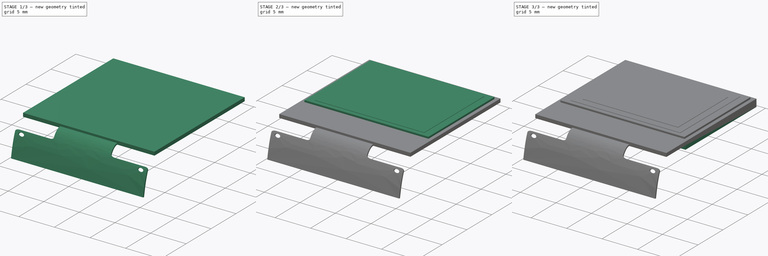
[diagram: build sequence overview — one tinted view per stage of 3, left to right]
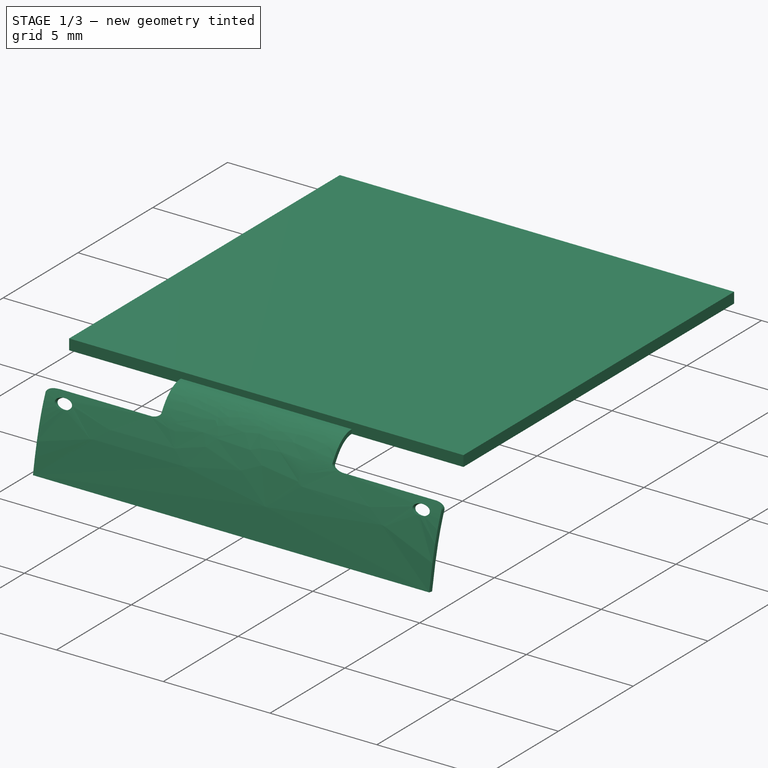
[diagram: stage 1 of 3 — iso view after this stage's code; geometry added in this stage tinted green]
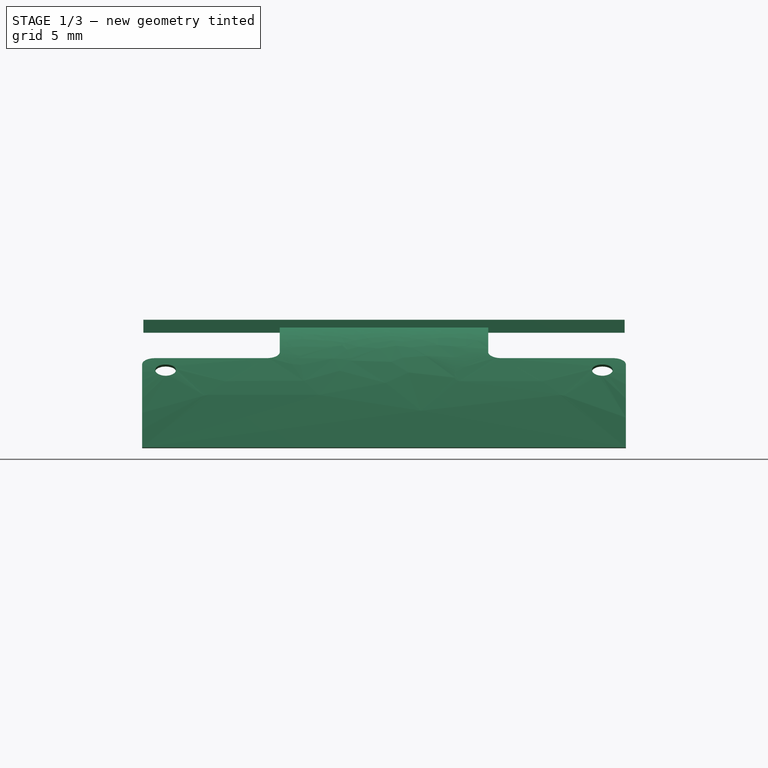
[diagram: stage 1 of 3 — front view after this stage's code; geometry added in this stage tinted green]
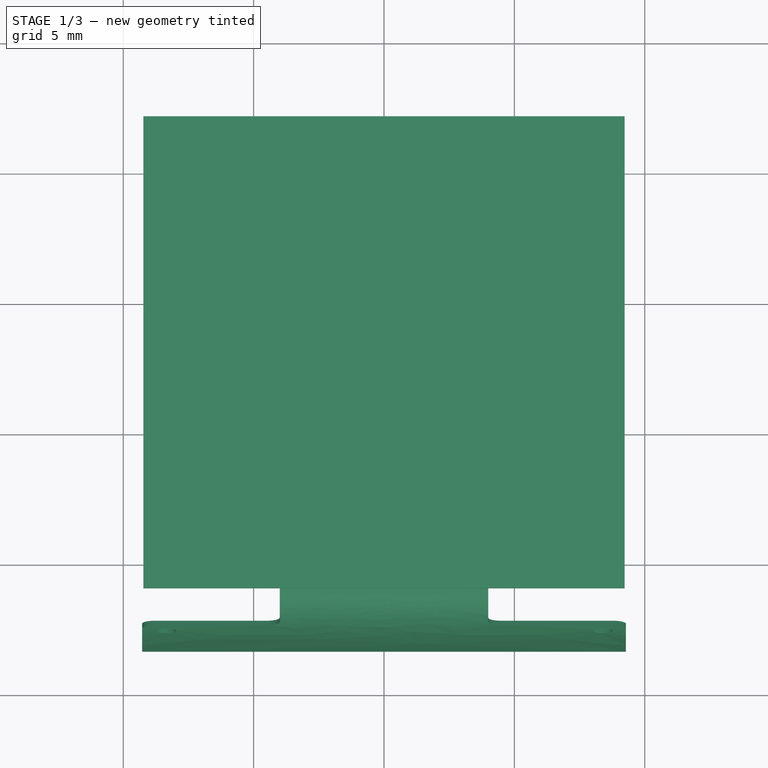
[diagram: stage 1 of 3 — top view after this stage's code; geometry added in this stage tinted green]
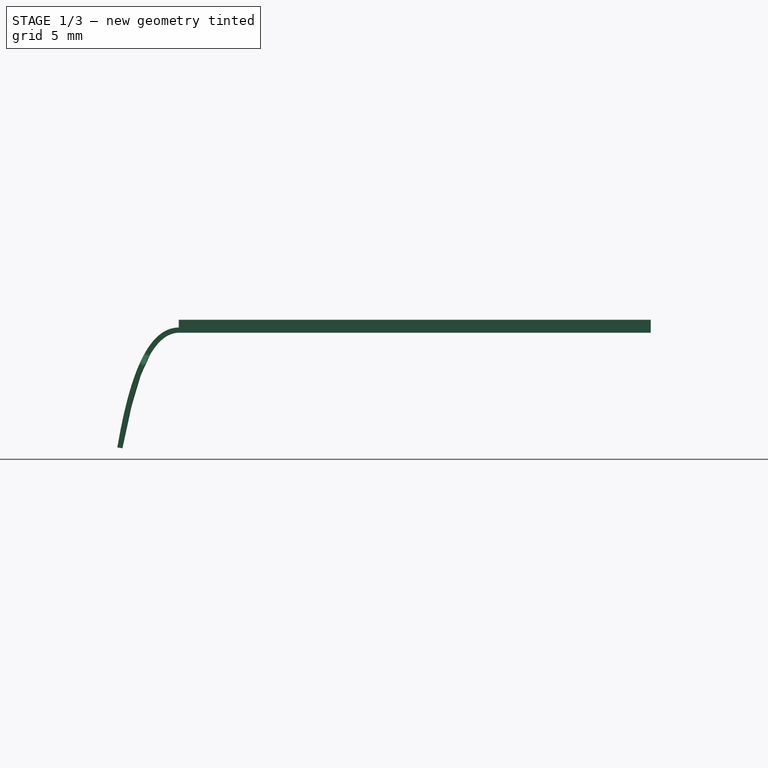
[diagram: stage 1 of 3 — right view after this stage's code; geometry added in this stage tinted green]
FCSTD DOCUMENT  (FreeCAD 0.19R24291 (Git))
Label: EA_W064048
License: Creative Commons Attribution-NonCommercial-ShareAlike
LicenseURL: http://creativecommons.org/licenses/by-nc-sa/4.0/
objects: Sketcher::SketchObject×7, PartDesign::Pad×5, PartDesign::Body×1, Part::Extrusion×1, Part::FeaturePython×1, App::Part×1
note: 20 computed .brp shape members not serialized (recipe doc carries the construction recipe); baked Part::Feature solids carry a one-line shape summary decoded from their .brp

FEATURE [Sketcher::SketchObject] Sketch
  FullyConstrained = true
  MapMode = 5
  Support = -> [XY_Plane]
  sketch-geometry (4):
    g0: LineSegment StartX=-9.23 StartY=7.13 StartZ=0 EndX=9.23 EndY=7.13 EndZ=0
    g1: LineSegment StartX=9.23 StartY=7.13 StartZ=0 EndX=9.23 EndY=-10.97 EndZ=0
    g2: LineSegment StartX=9.23 StartY=-10.97 StartZ=0 EndX=-9.23 EndY=-10.97 EndZ=0
    g3: LineSegment StartX=-9.23 StartY=-10.97 StartZ=0 EndX=-9.23 EndY=7.13 EndZ=0
  constraints (11):
    c: Coincident(g0,g1)
    c: Coincident(g1,g2)
    c: Coincident(g2,g3)
    c: Coincident(g3,g0)
    c: Horizontal(g2)
    c: Vertical(g1)
    c: Vertical(g3)
    c: Distance(g0) = 18.46
    c: Distance(g1) = 18.1
    c: Symmetric(g0,g0,g-2)
    c: Distance(g-1,g0) = 7.13
FEATURE [PartDesign::Pad] Pad
  Direction = (1,1,1)
  Length = 0.5
  Length2 = 100
  Profile = -> Sketch
  Refine = true
  Type = 0
FEATURE [PartDesign::Body] Body  label="Display"
  Group = -> [Sketch,Pad,Sketch001,Pad001,Sketch002,Pad002,Sketch003,Pad003,Sketch004,Pad004]
  Origin = -> Origin
  Tip = -> Pad004
FEATURE [Sketcher::SketchObject] Sketch005
  FullyConstrained = true
  MapMode = 5
  Placement = pos=(0,0,0) rot=(0.57735,0.57735,0.57735;2.0944rad)
  Support = -> [YZ_Plane003]
  sketch-geometry (6):
    g0: Circle CenterX=-10.97 CenterY=0 CenterZ=0 NormalX=0 NormalY=0 NormalZ=1 AngleXU=0 Radius=1
    g1: Circle CenterX=-13.97 CenterY=0 CenterZ=0 NormalX=0 NormalY=0 NormalZ=1 AngleXU=0 Radius=1
    g2: Circle CenterX=-13.97 CenterY=-20 CenterZ=0 NormalX=0 NormalY=0 NormalZ=1 AngleXU=0 Radius=1
    g3: BSplineCurve PolesCount=3 KnotsCount=2 Degree=2 IsPeriodic=0
    g4: GeomPoint X=-10.97 Y=0 Z=0
    g5: GeomPoint X=-13.97 Y=-20 Z=0
  constraints (14):
    c: PointOnObject(g3,g-1)
    c: Weight(g0) = 1
    c: Equal(g0,g1)
    c: Equal(g0,g2)
    c: InternalAlignment(g0,g3)
    c: InternalAlignment(g1,g3)
    c: InternalAlignment(g2,g3)
    c: InternalAlignment(g4,g3)
    c: InternalAlignment(g5,g3)
    c: Vertical(g3,g1)
    c: DistanceX(g-2,g3) = -10.97
    c: DistanceY(g-1,g3) = -20
    c: DistanceX(g3,g3) = 3
    c: PointOnObject(g1,g-1)
FEATURE [Part::Extrusion] Extrude
  Base = -> Sketch005
  Dir = (1,-1e-16,1e-16)
  DirMode = 2
  FaceMakerClass = Part::FaceMakerBullseye
  LengthFwd = 20
  LengthRev = 0
  Solid = false
  Symmetric = true
FEATURE [Sketcher::SketchObject] Mapped_Sketch
  FullyConstrained = true
  Support = -> [Extrude]
  sketch-geometry (18):
    g0: LineSegment StartX=-10 StartY=0 StartZ=0 EndX=10 EndY=0 EndZ=0
    g1: LineSegment StartX=10 StartY=0 StartZ=0 EndX=10 EndY=-20.821 EndZ=0
    g2: LineSegment StartX=10 StartY=-20.821 StartZ=0 EndX=-10 EndY=-20.821 EndZ=0
    g3: LineSegment StartX=-10 StartY=-20.821 StartZ=0 EndX=-10 EndY=0 EndZ=0
    g4: LineSegment StartX=4 StartY=0 StartZ=0 EndX=4 EndY=-4.3 EndZ=0
    g5: ArcOfCircle CenterX=4.5 CenterY=-4.3 CenterZ=0 NormalX=0 NormalY=0 NormalZ=1 AngleXU=0 Radius=0.5 StartAngle=3.14159 EndAngle=4.71239
    g6: LineSegment StartX=4.5 StartY=-4.8 StartZ=0 EndX=8.775 EndY=-4.8 EndZ=0
    g7: ArcOfCircle CenterX=8.775 CenterY=-5.3 CenterZ=0 NormalX=0 NormalY=0 NormalZ=1 AngleXU=0 Radius=0.5 StartAngle=-9e-16 EndAngle=1.5708
    g8: LineSegment StartX=9.275 StartY=-5.3 StartZ=0 EndX=9.275 EndY=-9.8 EndZ=0
    g9: LineSegment StartX=-4 StartY=0 StartZ=0 EndX=-4 EndY=-4.3 EndZ=0
    g10: ArcOfCircle CenterX=-4.5 CenterY=-4.3 CenterZ=0 NormalX=0 NormalY=0 NormalZ=1 AngleXU=0 Radius=0.5 StartAngle=4.71239 EndAngle=6.28319
    g11: LineSegment StartX=-4.5 StartY=-4.8 StartZ=0 EndX=-8.775 EndY=-4.8 EndZ=0
    g12: ArcOfCircle CenterX=-8.775 CenterY=-5.3 CenterZ=0 NormalX=0 NormalY=0 NormalZ=1 AngleXU=0 Radius=0.5 StartAngle=1.5708 EndAngle=3.14159
    g13: LineSegment StartX=-9.275 StartY=-5.3 StartZ=0 EndX=-9.275 EndY=-9.8 EndZ=0
    g14: LineSegment StartX=-4 StartY=0 StartZ=0 EndX=4 EndY=0 EndZ=0
    g15: LineSegment StartX=-9.275 StartY=-9.8 StartZ=0 EndX=9.275 EndY=-9.8 EndZ=0
    g16: Circle CenterX=-8.375 CenterY=-5.7 CenterZ=0 NormalX=0 NormalY=0 NormalZ=1 AngleXU=0 Radius=0.4
    g17: Circle CenterX=8.375 CenterY=-5.7 CenterZ=0 NormalX=0 NormalY=0 NormalZ=1 AngleXU=0 Radius=0.4
  constraints (45):
    c: Coincident(g0,g1)
    c: Coincident(g1,g2)
    c: Coincident(g2,g3)
    c: Coincident(g3,g0)
    c: Vertical(g1)
    c: Vertical(g3)
    c: PointOnObject(g0,g-1)
    c: Distance(g0) = 20
    c: Distance(g1) = 20.821
    c: PointOnObject(g4,g0)
    c: Vertical(g4)
    c: Tangent(g4,g5) = -1.5708
    c: Tangent(g5,g6) = -1.5708
    c: Tangent(g6,g7) = 1.5708
    c: Tangent(g7,g8) = 1.5708
    c: Tangent(g9,g10) = 1.5708
    c: Tangent(g10,g11) = 1.5708
    c: Tangent(g11,g12) = -1.5708
    c: Tangent(g12,g13) = -1.5708
    c: Coincident(g14,g9)
    c: Coincident(g14,g4)
    c: Coincident(g15,g13)
    c: Coincident(g15,g8)
    c: Distance(g15) = 18.55
    c: Symmetric(g9,g4,g-2)
    c: Symmetric(g13,g8,g-2)
    c: Symmetric(g0,g0,g-2)
    c: Vertical(g13)
    c: Vertical(g8)
    c: Horizontal(g11,g10)
    c: Horizontal(g10,g5)
    c: Horizontal(g5,g6)
    c: Distance(g14) = 8
    c: Symmetric(g9,g4,g-2)
    c: Radius(g10) = 0.5
    c: Radius(g12) = 0.5
    c: Distance(g9,g15) = 9.8
    c: Distance(g5,g15) = 5
    c: Radius(g7) = 0.5
    c: Horizontal(g2)
    c: Radius(g16) = 0.4
    c: Distance(g16,g15) = 4.1
    c: DistanceX(g-2,g16) = -8.375
    c: Radius(g17) = 0.4
    c: Symmetric(g17,g16,g-2)
FEATURE [Part::FeaturePython] Sketch_On_Surface  # WARN: FeaturePython — macro-defined, semantics opaque (R4)
  ConstructionBounds = true
  FillExtrusion = true
  FillFaces = true
  ReverseU = false
  ReverseV = true
  Sketch = -> Mapped_Sketch
  SwapUV = true
  Thickness = -0.2
FEATURE [App::Part] Part001  label="Flatflex Connector"
  Group = -> [Sketch005,Extrude,Mapped_Sketch,Sketch_On_Surface]
  Origin = -> Origin003
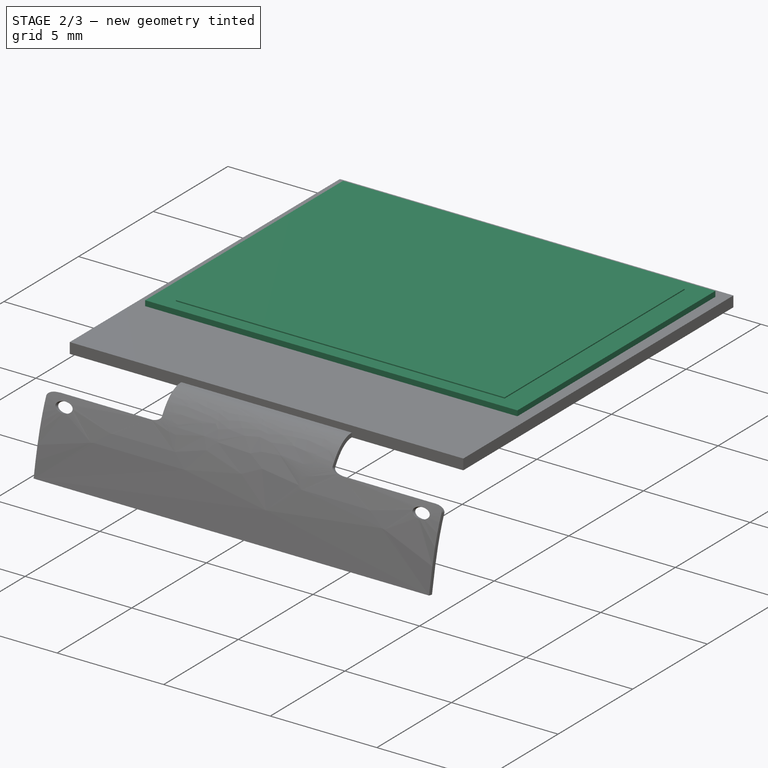
[diagram: stage 2 of 3 — iso view after this stage's code; geometry added in this stage tinted green]
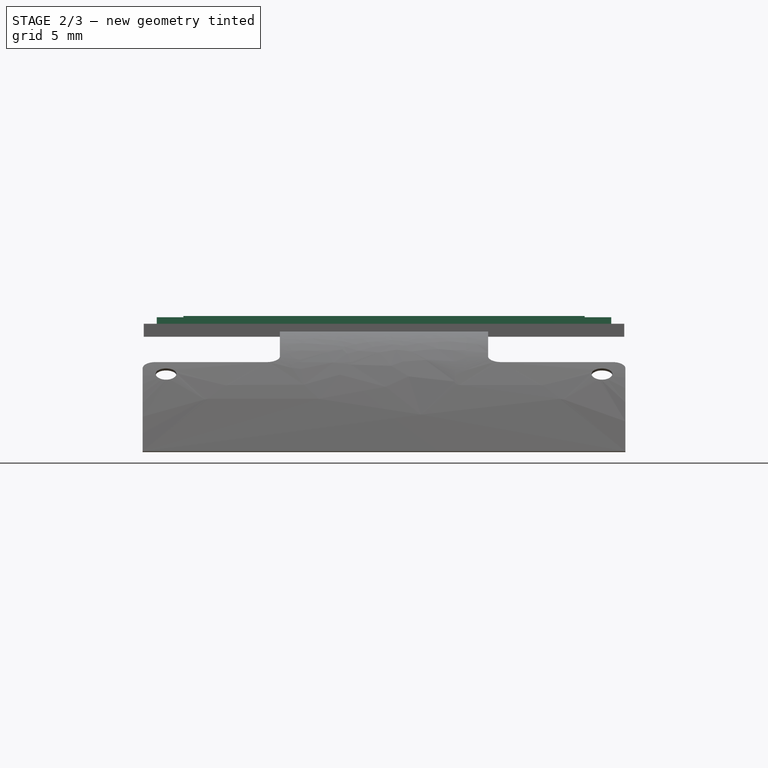
[diagram: stage 2 of 3 — front view after this stage's code; geometry added in this stage tinted green]
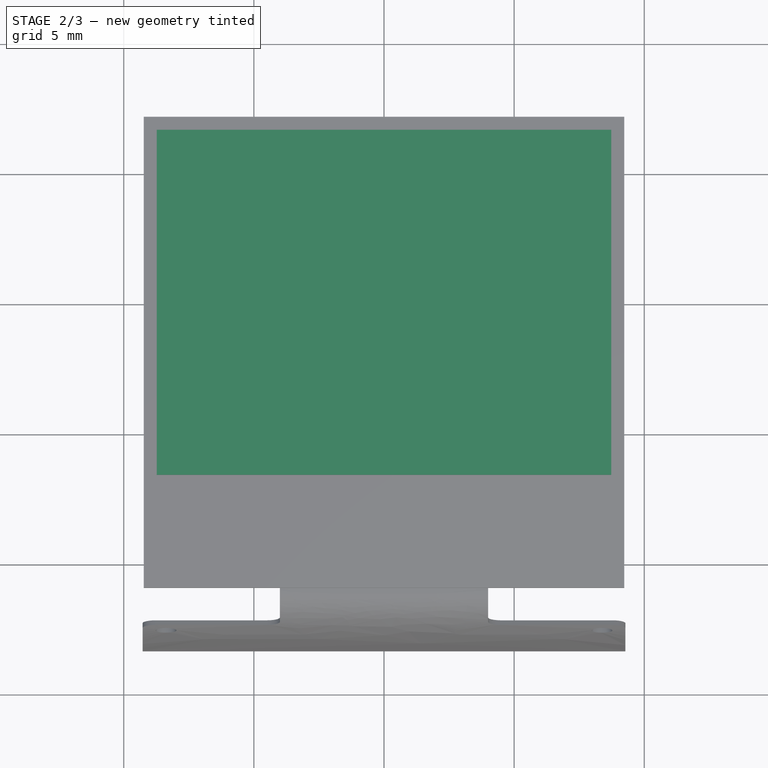
[diagram: stage 2 of 3 — top view after this stage's code; geometry added in this stage tinted green]
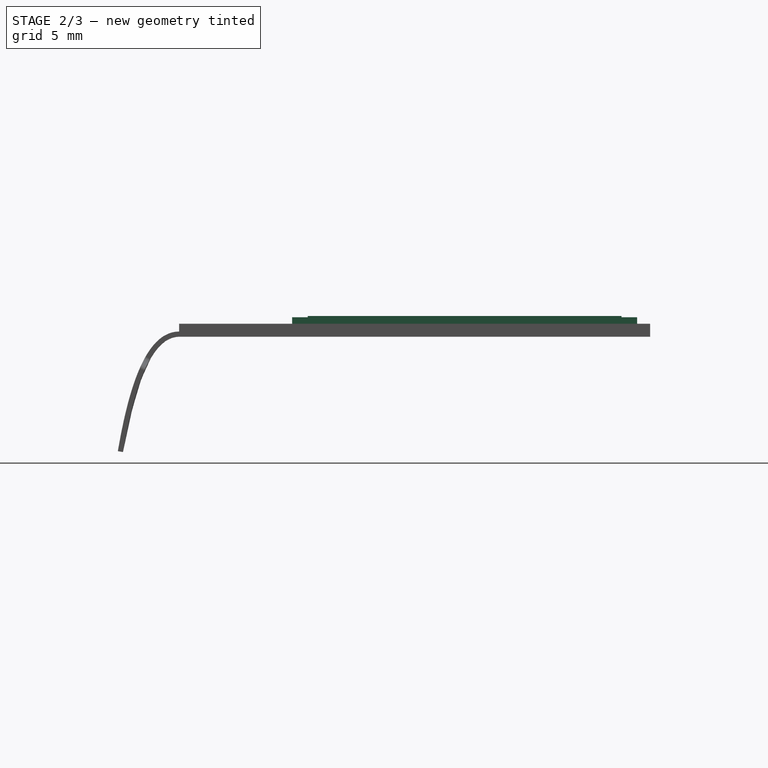
[diagram: stage 2 of 3 — right view after this stage's code; geometry added in this stage tinted green]
FEATURE [Sketcher::SketchObject] Sketch001
  FullyConstrained = true
  MapMode = 5
  Placement = pos=(0,0,0.5) rot=(0,0,1;0rad)
  Support = -> [Pad]
  sketch-geometry (4):
    g0: LineSegment StartX=-8.73 StartY=6.63 StartZ=0 EndX=8.73 EndY=6.63 EndZ=0
    g1: LineSegment StartX=8.73 StartY=6.63 StartZ=0 EndX=8.73 EndY=-6.63 EndZ=0
    g2: LineSegment StartX=8.73 StartY=-6.63 StartZ=0 EndX=-8.73 EndY=-6.63 EndZ=0
    g3: LineSegment StartX=-8.73 StartY=-6.63 StartZ=0 EndX=-8.73 EndY=6.63 EndZ=0
  constraints (11):
    c: Coincident(g0,g1)
    c: Coincident(g1,g2)
    c: Coincident(g2,g3)
    c: Coincident(g3,g0)
    c: Horizontal(g2)
    c: Vertical(g1)
    c: Vertical(g3)
    c: Distance(g0) = 17.46
    c: Distance(g1) = 13.26
    c: Symmetric(g0,g0,g-2)
    c: Distance(g-1,g0) = 6.63
FEATURE [PartDesign::Pad] Pad001
  BaseFeature = -> Pad
  Direction = (1,1,1)
  Length = 0.25
  Length2 = 100
  Profile = -> Sketch001
  Refine = true
  Type = 0
FEATURE [Sketcher::SketchObject] Sketch002
  FullyConstrained = true
  MapMode = 5
  Placement = pos=(0,0,0.75) rot=(0,0,1;0rad)
  Support = -> [Pad001]
  sketch-geometry (4):
    g0: LineSegment StartX=-7.71 StartY=6.03 StartZ=0 EndX=7.71 EndY=6.03 EndZ=0
    g1: LineSegment StartX=7.71 StartY=6.03 StartZ=0 EndX=7.71 EndY=-6.03 EndZ=0
    g2: LineSegment StartX=7.71 StartY=-6.03 StartZ=0 EndX=-7.71 EndY=-6.03 EndZ=0
    g3: LineSegment StartX=-7.71 StartY=-6.03 StartZ=0 EndX=-7.71 EndY=6.03 EndZ=0
  constraints (11):
    c: Coincident(g0,g1)
    c: Coincident(g1,g2)
    c: Coincident(g2,g3)
    c: Coincident(g3,g0)
    c: Horizontal(g2)
    c: Vertical(g1)
    c: Vertical(g3)
    c: Symmetric(g0,g0,g-2)
    c: Distance(g0) = 15.42
    c: Distance(g3) = 12.06
    c: Distance(g-1,g0) = 6.03
FEATURE [PartDesign::Pad] Pad002
  BaseFeature = -> Pad001
  Direction = (1,1,1)
  Length = 0.05
  Length2 = 100
  Profile = -> Sketch002
  Refine = true
  Type = 0
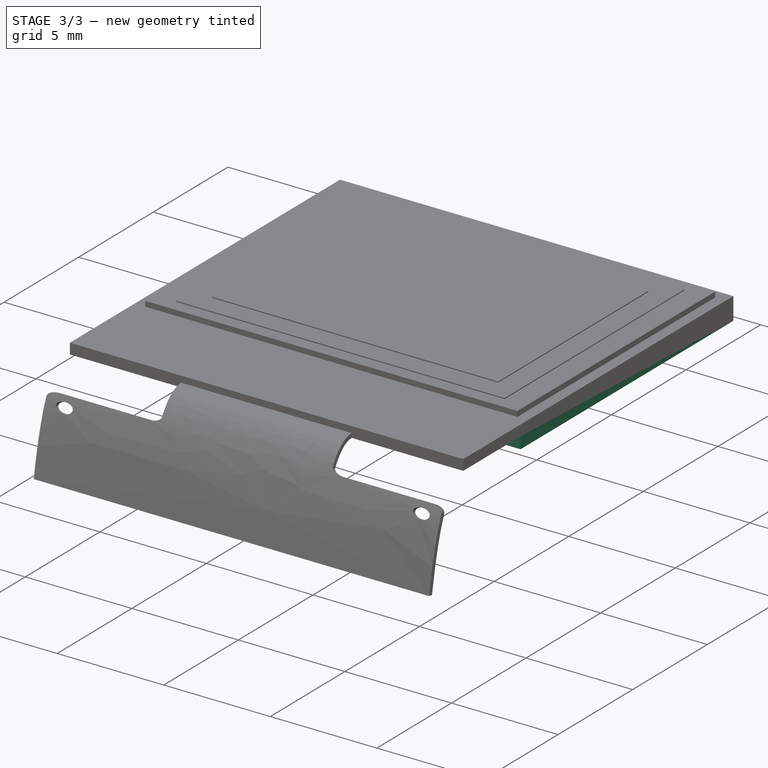
[diagram: stage 3 of 3 — iso view after this stage's code; geometry added in this stage tinted green]
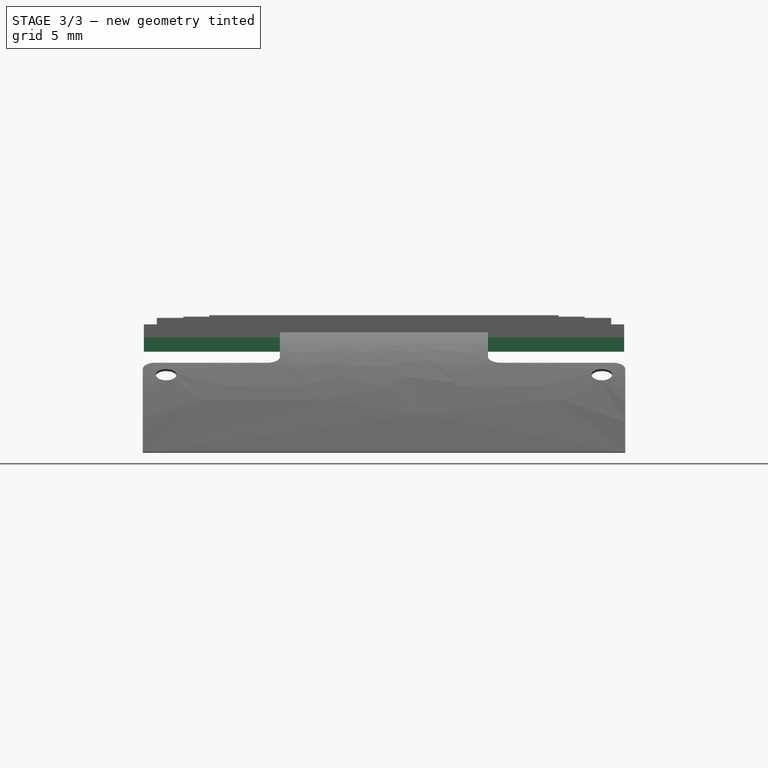
[diagram: stage 3 of 3 — front view after this stage's code; geometry added in this stage tinted green]
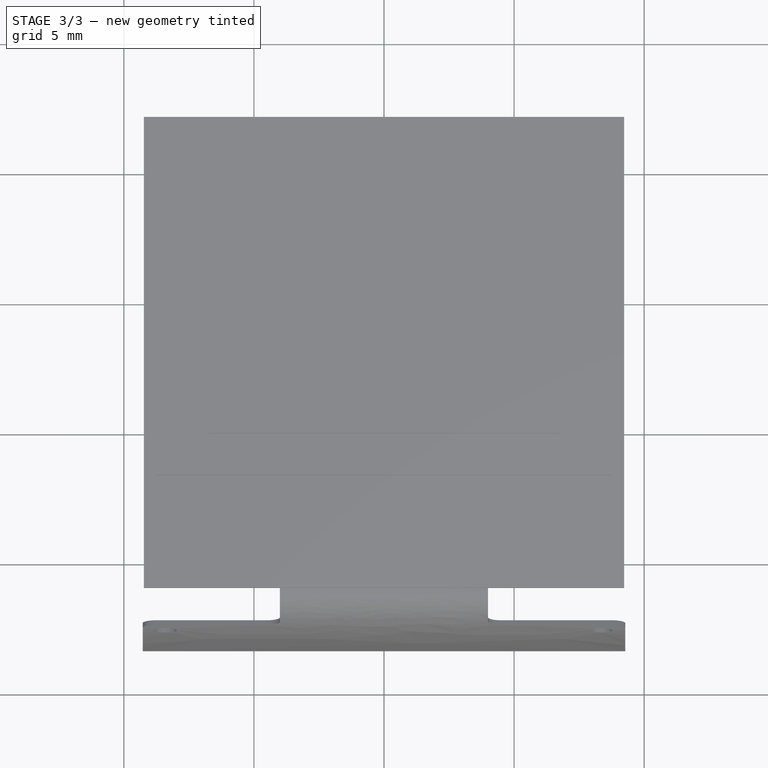
[diagram: stage 3 of 3 — top view after this stage's code; geometry added in this stage tinted green]
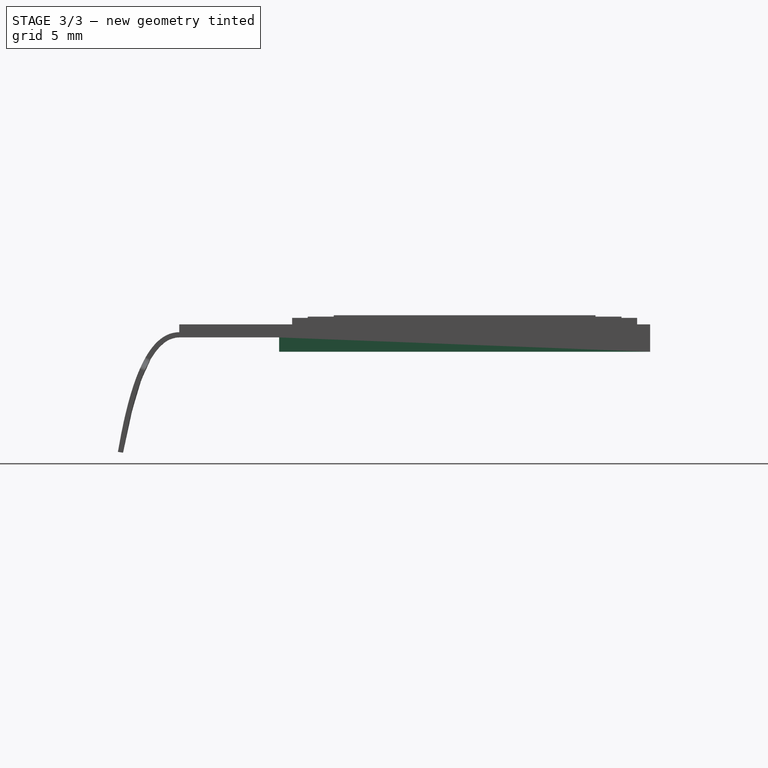
[diagram: stage 3 of 3 — right view after this stage's code; geometry added in this stage tinted green]
FEATURE [Sketcher::SketchObject] Sketch003
  FullyConstrained = true
  MapMode = 5
  Placement = pos=(0,0,0.8) rot=(0,0,1;0rad)
  Support = -> [Pad002]
  sketch-geometry (4):
    g0: LineSegment StartX=-6.71 StartY=5.03 StartZ=0 EndX=6.71 EndY=5.03 EndZ=0
    g1: LineSegment StartX=6.71 StartY=5.03 StartZ=0 EndX=6.71 EndY=-5.03 EndZ=0
    g2: LineSegment StartX=6.71 StartY=-5.03 StartZ=0 EndX=-6.71 EndY=-5.03 EndZ=0
    g3: LineSegment StartX=-6.71 StartY=-5.03 StartZ=0 EndX=-6.71 EndY=5.03 EndZ=0
  constraints (11):
    c: Coincident(g0,g1)
    c: Coincident(g1,g2)
    c: Coincident(g2,g3)
    c: Coincident(g3,g0)
    c: Horizontal(g2)
    c: Vertical(g1)
    c: Vertical(g3)
    c: Symmetric(g0,g0,g-2)
    c: Distance(g0) = 13.42
    c: Distance(g3) = 10.06
    c: Distance(g-1,g0) = 5.03
FEATURE [PartDesign::Pad] Pad003
  BaseFeature = -> Pad002
  Direction = (1,1,1)
  Length = 0.05
  Length2 = 100
  Profile = -> Sketch003
  Refine = true
  Type = 0
FEATURE [Sketcher::SketchObject] Sketch004
  FullyConstrained = true
  MapMode = 5
  Support = -> [XY_Plane]
  sketch-geometry (4):
    g0: LineSegment StartX=-9.23 StartY=7.13 StartZ=0 EndX=9.23 EndY=7.13 EndZ=0
    g1: LineSegment StartX=9.23 StartY=7.13 StartZ=0 EndX=9.23 EndY=-7.13 EndZ=0
    g2: LineSegment StartX=9.23 StartY=-7.13 StartZ=0 EndX=-9.23 EndY=-7.13 EndZ=0
    g3: LineSegment StartX=-9.23 StartY=-7.13 StartZ=0 EndX=-9.23 EndY=7.13 EndZ=0
  constraints (11):
    c: Coincident(g0,g1)
    c: Coincident(g1,g2)
    c: Coincident(g2,g3)
    c: Coincident(g3,g0)
    c: Horizontal(g2)
    c: Vertical(g1)
    c: Vertical(g3)
    c: Symmetric(g0,g0,g-2)
    c: Distance(g0) = 18.46
    c: Distance(g1) = 14.26
    c: Distance(g-1,g0) = 7.13
FEATURE [PartDesign::Pad] Pad004
  BaseFeature = -> Pad003
  Direction = (1,1,1)
  Length = 0.55
  Length2 = 100
  Profile = -> Sketch004
  Refine = true
  Reversed = true
  Type = 0
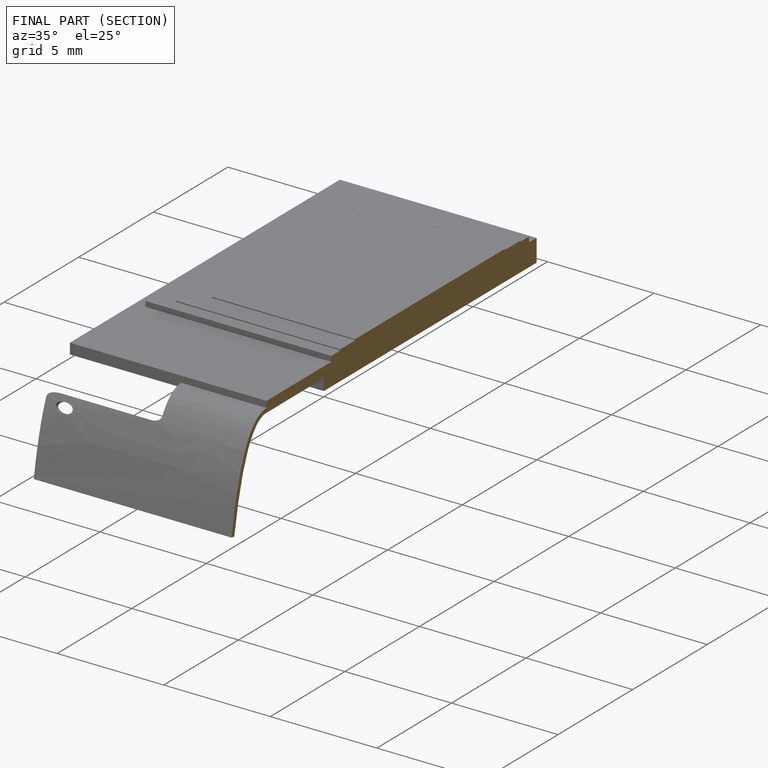
[diagram: finished part — half-section view (interior)]
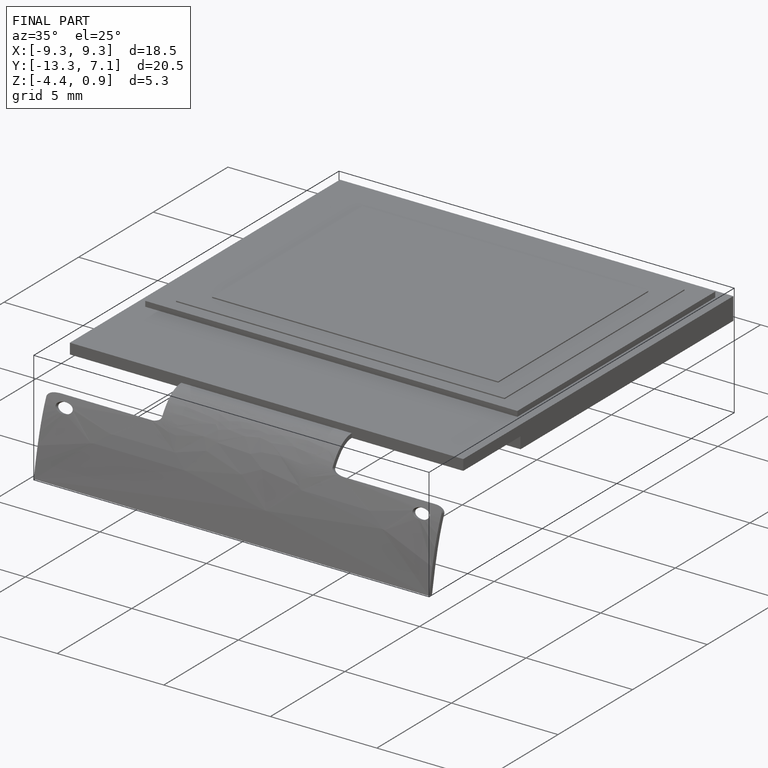
[diagram: finished part — iso view with bounding-box wireframe]
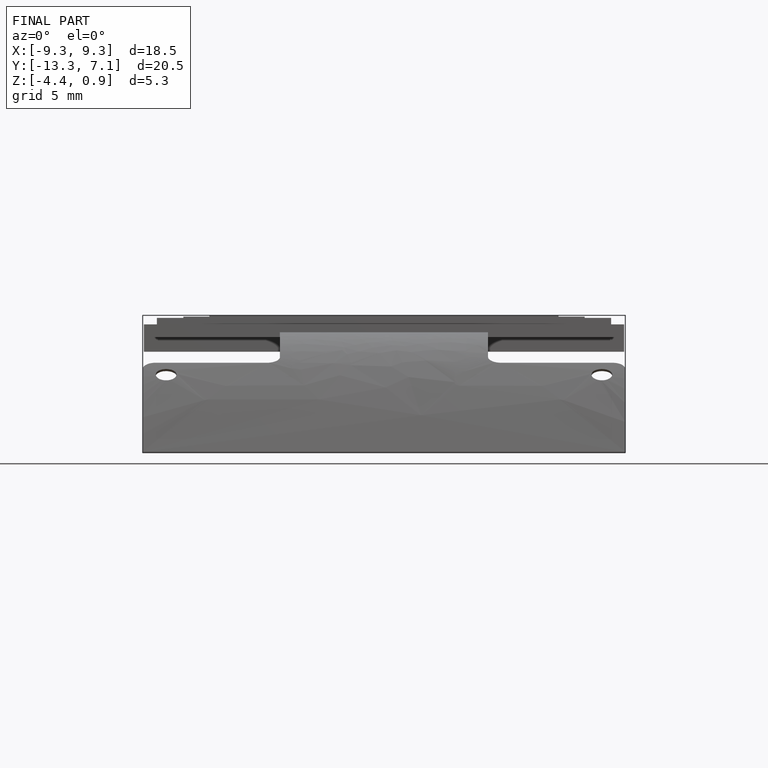
[diagram: finished part — front view with bounding-box wireframe]
